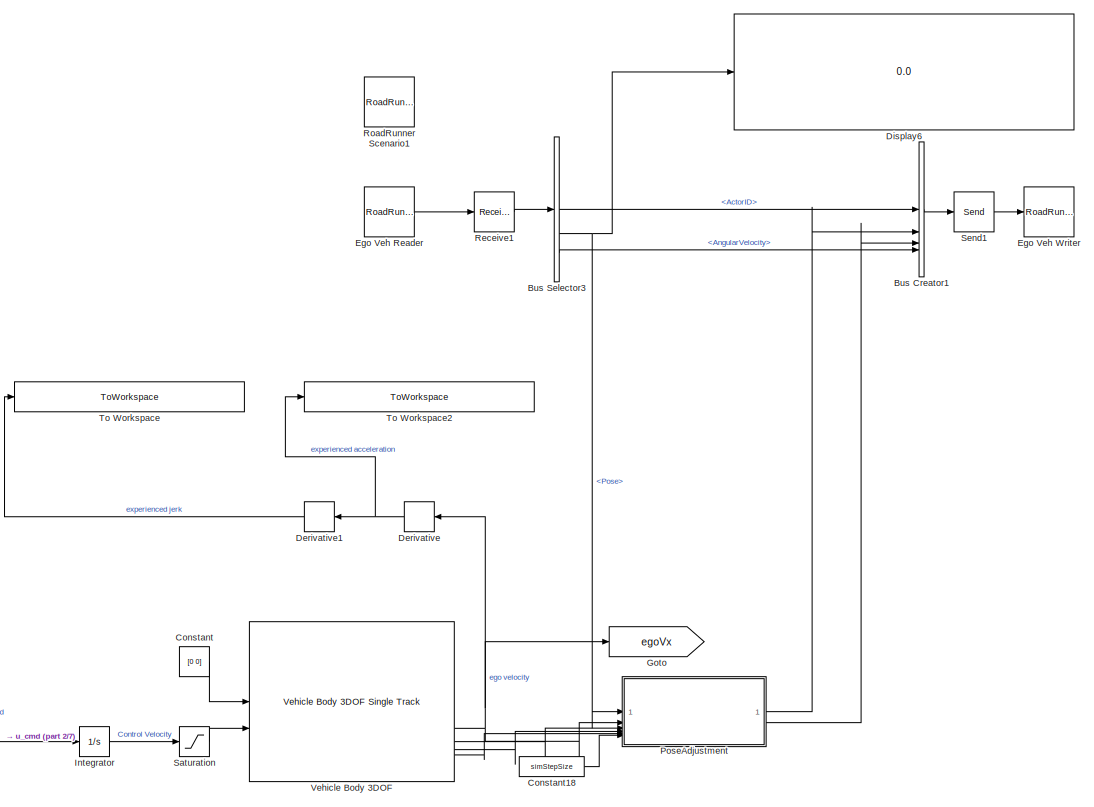
[diagram: root canvas - part 1/7, top right region]
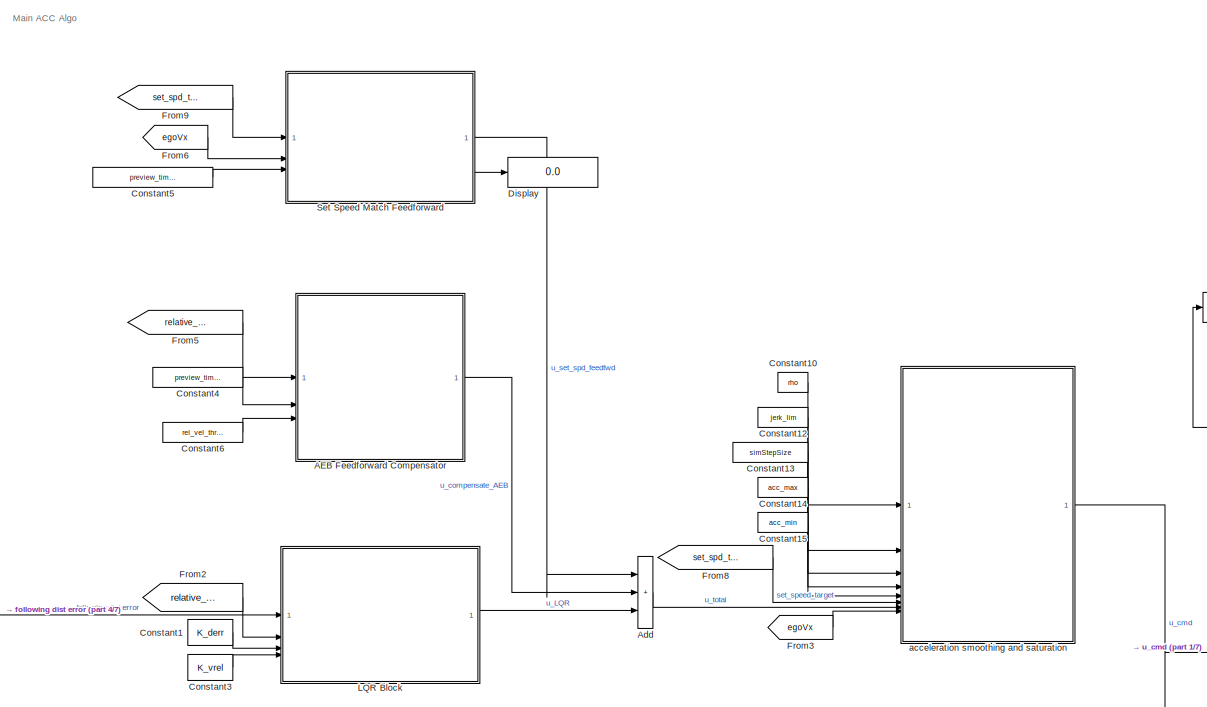
[diagram: root canvas - part 2/7, top center region]
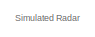
[diagram: root canvas - part 3/7, top left region]
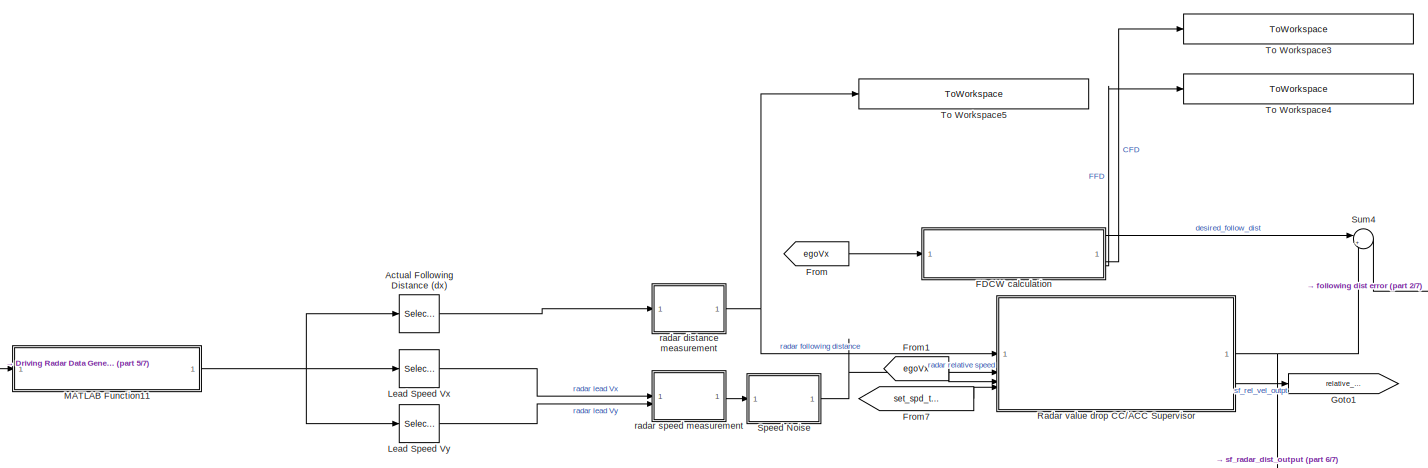
[diagram: root canvas - part 4/7, middle left region]
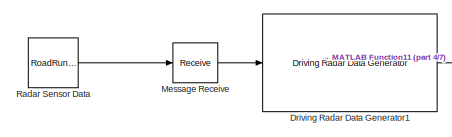
[diagram: root canvas - part 5/7, middle left region]
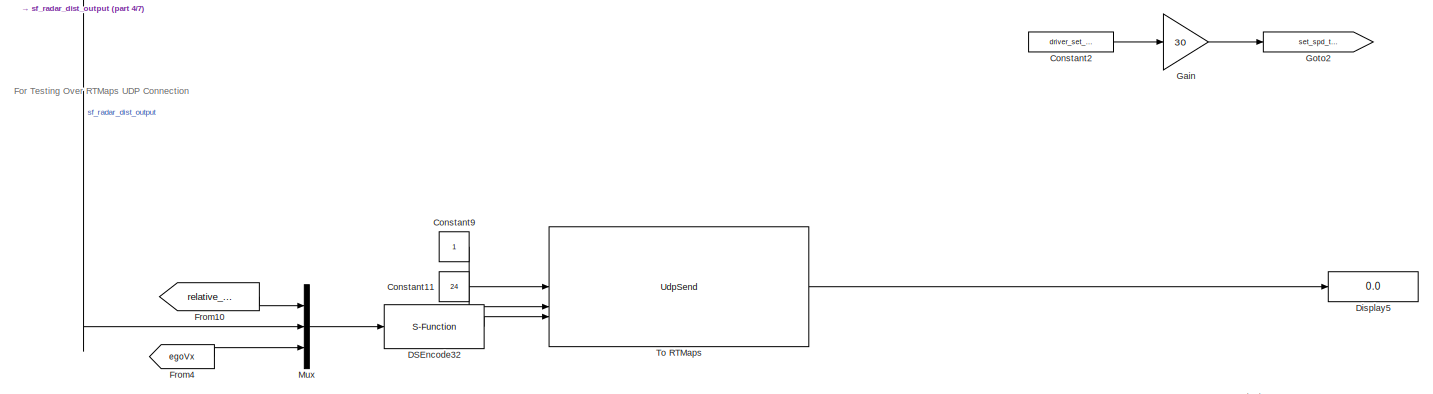
[diagram: root canvas - part 6/7, bottom center region]
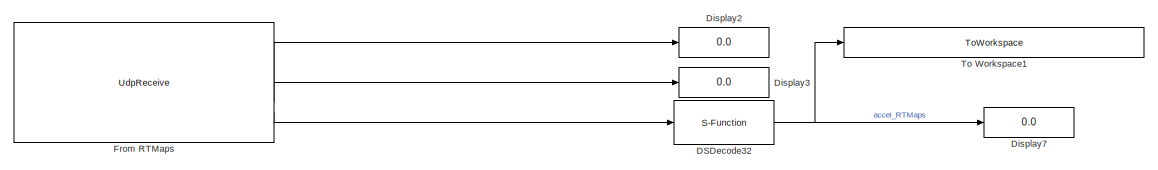
[diagram: root canvas - part 7/7, bottom center region]
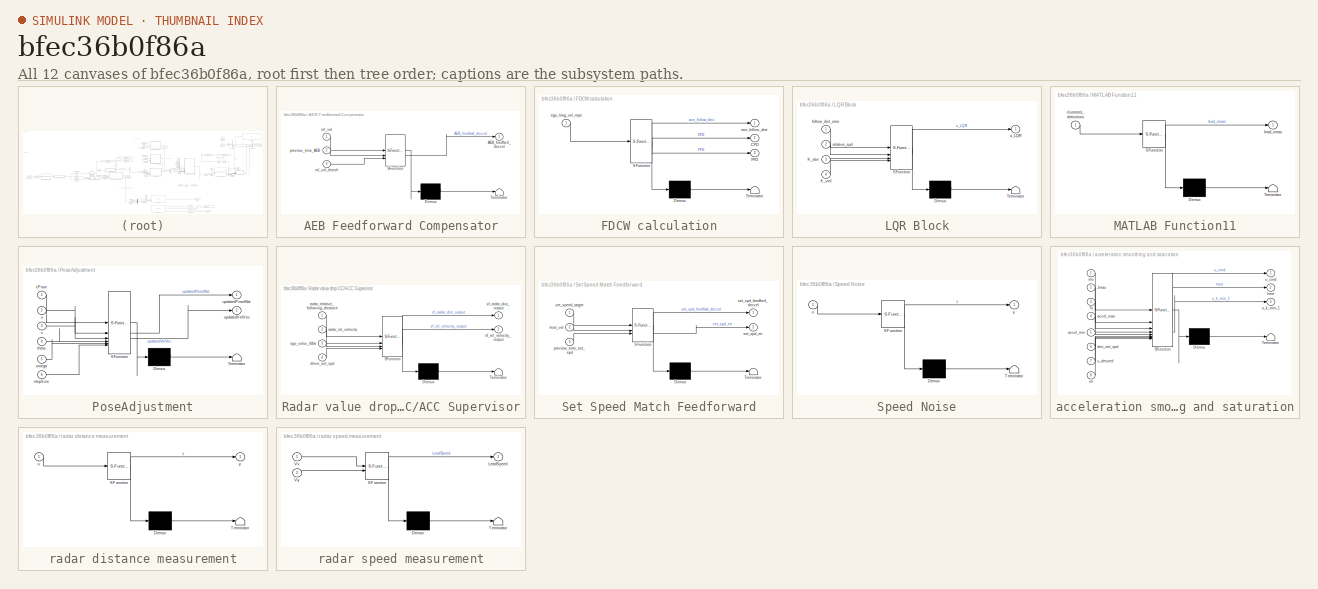
[diagram: thumbnail index - all 12 canvases of the model, root first then tree order]
MODEL slx_bfec36b0f86a
KIND model
CONFIG AbsTol = auto
CONFIG EnableMultiTasking = off
CONFIG FixedStep = 0.05
CONFIG MaxStep = auto
CONFIG MinStep = auto
CONFIG RelTol = 1e-3
CONFIG SampleTimeConstraint = Unconstrained
CONFIG SolverName = FixedStepAuto
CONFIG StartTime = 0
CONFIG StopTime = 1000
BLOCK [SubSystem] AEB Feedforward Compensator
  ErrorFcn = Stateflow.Translate.translate
  PermitHierarchicalResolution = ExplicitOnly
  SFBlockType = MATLAB Function
  TreatAsAtomicUnit = on
BLOCK [Demux] AEB Feedforward Compensator/ Demux 
  Outputs = 1
BLOCK [S-Function] AEB Feedforward Compensator/ SFunction 
  EnableBusSupport = on
  FunctionName = sf_sfun
  PortCounts = [3 2]
  SFcnIsStateOwnerBlock = off
  SFunctionDeploymentMode = off
  Tag = Stateflow S-Function 2
BLOCK [Terminator] AEB Feedforward Compensator/ Terminator 
BLOCK [Outport] AEB Feedforward Compensator/AEB_feedfwd_deccel
BLOCK [Inport] AEB Feedforward Compensator/preview_time_AEB
  Port = 2
BLOCK [Inport] AEB Feedforward Compensator/rel_vel
BLOCK [Inport] AEB Feedforward Compensator/rel_vel_thresh
  Port = 3
BLOCK [Selector] Actual Following Distance (dx)
  IndexOptions = Index vector (dialog)
  Indices = [1]
  InputPortWidth = 6
  OutputSizes = 1
BLOCK [Sum] Add
  IconShape = rectangular
  Inputs = +++
BLOCK [BusCreator] Bus Creator1
  DisplayOption = bar
  InheritFromInputs = off
  Inputs = 4
  NonVirtualBus = on
  OutDataTypeStr = Bus: BusActorRuntime
BLOCK [BusSelector] Bus Selector3
  OutputSignals = ActorID,Pose,Velocity,AngularVelocity
BLOCK [Constant] Constant
  Value = [0 0]
BLOCK [Constant] Constant1
  SampleTime = simStepSize
  Value = K_derr
BLOCK [Constant] Constant10
  Value = rho
BLOCK [Constant] Constant11
  Value = 24
BLOCK [Constant] Constant12
  Value = jerk_lim
BLOCK [Constant] Constant13
  Value = simStepSize
BLOCK [Constant] Constant14
  Value = acc_max
BLOCK [Constant] Constant15
  Value = acc_min
BLOCK [Constant] Constant18
  Value = simStepSize
BLOCK [Constant] Constant2
  SampleTime = simStepSize
  Value = driver_set_speed
BLOCK [Constant] Constant3
  SampleTime = simStepSize
  Value = K_vrel
BLOCK [Constant] Constant4
  Value = preview_time_AEB
BLOCK [Constant] Constant5
  Value = preview_time_set_spd
BLOCK [Constant] Constant6
  Value = rel_vel_thresh
BLOCK [Constant] Constant9
BLOCK [S-Function] DSDecode32 
  EnableBusSupport = off
  FunctionName = ds867c_eth_decode32_sfcn
  Parameters = byteordering,offset,auto_offset,datatype,one_datatype,sampletime
  SFcnIsStateOwnerBlock = off
  SFunctionDeploymentMode = off
BLOCK [S-Function] DSEncode32
  EnableBusSupport = off
  FunctionName = ds867c_eth_encode32_sfcn
  Parameters = byteordering,offset,auto_offset,datatype,one_datatype,sampletime
  SFcnIsStateOwnerBlock = off
  SFunctionDeploymentMode = off
BLOCK [Derivative] Derivative
BLOCK [Derivative] Derivative1
BLOCK [Display] Display
  Decimation = 1
BLOCK [Display] Display2
  Decimation = 1
BLOCK [Display] Display3
  Decimation = 1
BLOCK [Display] Display5
  Decimation = 1
BLOCK [Display] Display6
  Decimation = 1
BLOCK [Display] Display7
  Decimation = 1
BLOCK [Reference] Driving Radar Data Generator1  REF=drivingscenarioandsensors/Driving Radar Data Generator
  SourceBlock = drivingscenarioandsensors/Driving Radar Data Generator
  SourceType = drivingRadarDataGenerator
BLOCK [Reference] Ego Veh Reader  REF=roadrunnerscenario/RoadRunner Scenario
Reader
  SourceBlock = roadrunnerscenario/RoadRunner Scenario\nReader
BLOCK [Reference] Ego Veh Writer  REF=roadrunnerscenario/RoadRunner Scenario
Writer
  SourceBlock = roadrunnerscenario/RoadRunner Scenario\nWriter
BLOCK [SubSystem] FDCW calculation
  ErrorFcn = Stateflow.Translate.translate
  PermitHierarchicalResolution = ExplicitOnly
  SFBlockType = MATLAB Function
  TreatAsAtomicUnit = on
BLOCK [Demux] FDCW calculation/ Demux 
  Outputs = 1
BLOCK [S-Function] FDCW calculation/ SFunction 
  EnableBusSupport = on
  FunctionName = sf_sfun
  PortCounts = [1 4]
  SFcnIsStateOwnerBlock = off
  SFunctionDeploymentMode = off
  Tag = Stateflow S-Function 23
BLOCK [Terminator] FDCW calculation/ Terminator 
BLOCK [Outport] FDCW calculation/CFD
  Port = 2
BLOCK [Outport] FDCW calculation/FFD
  Port = 3
BLOCK [Outport] FDCW calculation/ave_follow_dist
BLOCK [Inport] FDCW calculation/ego_long_vel_mps
BLOCK [From] From
  GotoTag = egoVx
BLOCK [Reference] From RTMaps  REF=dsa_UDP_Blockset/UdpReceive
  SourceBlock = dsa_UDP_Blockset/UdpReceive
  SourceType = DSA_UDP_RECEIVE
BLOCK [From] From1
  GotoTag = egoVx
BLOCK [From] From10
  GotoTag = relative_velocity
BLOCK [From] From2
  GotoTag = relative_velocity
BLOCK [From] From3
  GotoTag = egoVx
BLOCK [From] From4
  GotoTag = egoVx
BLOCK [From] From5
  GotoTag = relative_velocity
BLOCK [From] From6
  GotoTag = egoVx
BLOCK [From] From7
  GotoTag = set_spd_target
BLOCK [From] From8
  GotoTag = set_spd_target
BLOCK [From] From9
  GotoTag = set_spd_target
BLOCK [Gain] Gain
  Gain = 30
BLOCK [Goto] Goto
  GotoTag = egoVx
BLOCK [Goto] Goto1
  GotoTag = relative_velocity
BLOCK [Goto] Goto2
  GotoTag = set_spd_target
BLOCK [Integrator] Integrator
BLOCK [SubSystem] LQR Block
  ErrorFcn = Stateflow.Translate.translate
  PermitHierarchicalResolution = ExplicitOnly
  SFBlockType = MATLAB Function
  SystemSampleTime = simStepSize
  TreatAsAtomicUnit = on
BLOCK [Demux] LQR Block/ Demux 
  Outputs = 1
BLOCK [S-Function] LQR Block/ SFunction 
  EnableBusSupport = on
  FunctionName = sf_sfun
  PortCounts = [4 2]
  SFcnIsStateOwnerBlock = off
  SFunctionDeploymentMode = off
  Tag = Stateflow S-Function 1
BLOCK [Terminator] LQR Block/ Terminator 
BLOCK [Inport] LQR Block/K_derr
  Port = 3
BLOCK [Inport] LQR Block/K_vrel
  Port = 4
BLOCK [Inport] LQR Block/follow_dist_error
BLOCK [Inport] LQR Block/relative_spd
  Port = 2
BLOCK [Outport] LQR Block/u_LQR
BLOCK [Selector] Lead Speed Vx
  IndexOptions = Index vector (dialog)
  Indices = 4
  InputPortWidth = 6
  OutputSizes = 1
BLOCK [Selector] Lead Speed Vy
  IndexOptions = Index vector (dialog)
  Indices = 5
  InputPortWidth = 6
  NameLocation = top
  OutputSizes = 1
BLOCK [SubSystem] MATLAB Function11
  ErrorFcn = Stateflow.Translate.translate
  PermitHierarchicalResolution = ExplicitOnly
  SFBlockType = MATLAB Function
  TreatAsAtomicUnit = on
BLOCK [Demux] MATLAB Function11/ Demux 
  Outputs = 1
BLOCK [S-Function] MATLAB Function11/ SFunction 
  EnableBusSupport = on
  FunctionName = sf_sfun
  PortCounts = [1 2]
  SFcnIsStateOwnerBlock = off
  SFunctionDeploymentMode = off
  Tag = Stateflow S-Function 22
BLOCK [Terminator] MATLAB Function11/ Terminator 
BLOCK [Inport] MATLAB Function11/clustered_detections
BLOCK [Outport] MATLAB Function11/lead_meas
BLOCK [Receive] Message Receive
  InputPortMap = u0
  InputPortMessageModes = m
  OutputPortMap = o1
  UseInternalQueue = off
BLOCK [Mux] Mux
  DisplayOption = bar
  Inputs = 3
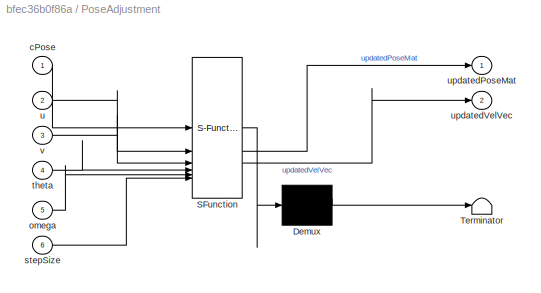
BLOCK [SubSystem] PoseAdjustment
  ErrorFcn = Stateflow.Translate.translate
  PermitHierarchicalResolution = ExplicitOnly
  SFBlockType = MATLAB Function
  TreatAsAtomicUnit = on
BLOCK [Demux] PoseAdjustment/ Demux 
  Outputs = 1
BLOCK [S-Function] PoseAdjustment/ SFunction 
  EnableBusSupport = on
  FunctionName = sf_sfun
  PortCounts = [6 3]
  SFcnIsStateOwnerBlock = off
  SFunctionDeploymentMode = off
  Tag = Stateflow S-Function 12
BLOCK [Terminator] PoseAdjustment/ Terminator 
BLOCK [Inport] PoseAdjustment/cPose
BLOCK [Inport] PoseAdjustment/omega
  Port = 5
BLOCK [Inport] PoseAdjustment/stepSize
  Port = 6
BLOCK [Inport] PoseAdjustment/theta
  Port = 4
BLOCK [Inport] PoseAdjustment/u
  Port = 2
BLOCK [Outport] PoseAdjustment/updatedPoseMat
BLOCK [Outport] PoseAdjustment/updatedVelVec
  Port = 2
BLOCK [Inport] PoseAdjustment/v
  Port = 3
BLOCK [Reference] Radar Sensor Data  REF=roadrunnerscenario/RoadRunner Scenario
Reader
  SourceBlock = roadrunnerscenario/RoadRunner Scenario\nReader
BLOCK [SubSystem] Radar value drop CC//ACC Supervisor
  ErrorFcn = Stateflow.Translate.translate
  PermitHierarchicalResolution = ExplicitOnly
  SFBlockType = Chart
  TreatAsAtomicUnit = on
BLOCK [Demux] Radar value drop CC//ACC Supervisor/ Demux 
  Outputs = 1
BLOCK [S-Function] Radar value drop CC//ACC Supervisor/ SFunction 
  EnableBusSupport = on
  FunctionName = sf_sfun
  PortCounts = [4 3]
  SFcnIsStateOwnerBlock = off
  SFunctionDeploymentMode = off
  Tag = Stateflow S-Function 3
BLOCK [Terminator] Radar value drop CC//ACC Supervisor/ Terminator 
BLOCK [Inport] Radar value drop CC//ACC Supervisor/driver_set_spd
  Port = 4
BLOCK [Inport] Radar value drop CC//ACC Supervisor/ego_veloc_fdbk
  Port = 3
BLOCK [Inport] Radar value drop CC//ACC Supervisor/radar_rel_velocity
  Port = 2
BLOCK [Inport] Radar value drop CC//ACC Supervisor/radar_relative_following_distance
BLOCK [Outport] Radar value drop CC//ACC Supervisor/sf_radar_dist_output
BLOCK [Outport] Radar value drop CC//ACC Supervisor/sf_rel_velocity_output
  Port = 2
BLOCK [Receive] Receive1
  InputPortMap = u0
  InputPortMessageModes = m
  OutputPortMap = o1
  QueueLength = 1
  QueueOverwriting = on
  QueueType = LIFO
  UseInternalQueue = off
BLOCK [Reference] RoadRunner Scenario1  REF=roadrunnerscenario/RoadRunner Scenario
  SourceBlock = roadrunnerscenario/RoadRunner Scenario
BLOCK [Saturate] Saturation
  Commented = through
  LowerLimit = 0
  UpperLimit = driver_set_speed
BLOCK [Send] Send1
  InputPortMap = u1
  OutputPortMessageModes = m
BLOCK [SubSystem] Set Speed Match Feedforward
  ErrorFcn = Stateflow.Translate.translate
  PermitHierarchicalResolution = ExplicitOnly
  SFBlockType = MATLAB Function
  TreatAsAtomicUnit = on
BLOCK [Demux] Set Speed Match Feedforward/ Demux 
  Outputs = 1
BLOCK [S-Function] Set Speed Match Feedforward/ SFunction 
  EnableBusSupport = on
  FunctionName = sf_sfun
  PortCounts = [3 3]
  SFcnIsStateOwnerBlock = off
  SFunctionDeploymentMode = off
  Tag = Stateflow S-Function 5
BLOCK [Terminator] Set Speed Match Feedforward/ Terminator 
BLOCK [Inport] Set Speed Match Feedforward/host_vel
  Port = 2
BLOCK [Inport] Set Speed Match Feedforward/preview_time_set_spd
  Port = 3
BLOCK [Outport] Set Speed Match Feedforward/set_spd_err
  Port = 2
BLOCK [Outport] Set Speed Match Feedforward/set_spd_feedfwd_deccel
BLOCK [Inport] Set Speed Match Feedforward/set_speed_target
BLOCK [SubSystem] Speed Noise
  ErrorFcn = Stateflow.Translate.translate
  PermitHierarchicalResolution = ExplicitOnly
  SFBlockType = MATLAB Function
  TreatAsAtomicUnit = on
BLOCK [Demux] Speed Noise/ Demux 
  Outputs = 1
BLOCK [S-Function] Speed Noise/ SFunction 
  EnableBusSupport = on
  FunctionName = sf_sfun
  PortCounts = [1 2]
  SFcnIsStateOwnerBlock = off
  SFunctionDeploymentMode = off
  Tag = Stateflow S-Function 15
BLOCK [Terminator] Speed Noise/ Terminator 
BLOCK [Inport] Speed Noise/u
BLOCK [Outport] Speed Noise/y
BLOCK [Sum] Sum4
  Inputs = |+-
BLOCK [Reference] To RTMaps  REF=dsa_UDP_Blockset/UdpSend
  SourceBlock = dsa_UDP_Blockset/UdpSend
  SourceType = DSA_UDP_SEND
BLOCK [ToWorkspace] To Workspace
  FixptAsFi = on
  MaxDataPoints = inf
  SampleTime = -1
  VariableName = LQR_host_jerk
BLOCK [ToWorkspace] To Workspace1
  FixptAsFi = on
  MaxDataPoints = inf
  SampleTime = -1
  SaveFormat = Timeseries
  VariableName = RTMapsLQR_inpt_from_SL1
BLOCK [ToWorkspace] To Workspace2
  FixptAsFi = on
  MaxDataPoints = inf
  SampleTime = -1
  VariableName = LQR_host_accel
BLOCK [ToWorkspace] To Workspace3
  FixptAsFi = on
  MaxDataPoints = inf
  SampleTime = -1
  VariableName = LQR_CFD
BLOCK [ToWorkspace] To Workspace4
  FixptAsFi = on
  MaxDataPoints = inf
  SampleTime = -1
  VariableName = LQR_FFD
BLOCK [ToWorkspace] To Workspace5
  FixptAsFi = on
  MaxDataPoints = inf
  SampleTime = -1
  VariableName = LQR_actual_foll_dist
BLOCK [Reference] Vehicle Body 3DOF   REF=autolibshared/Vehicle Body 3DOF Single Track
  LibrarySourceBlock = vehdynlibeom/Vehicle Body 3DOF Single Track
  SourceBlock = autolibshared/Vehicle Body 3DOF Single Track
  SourceType = Vehicle Body 3DOF Lateral
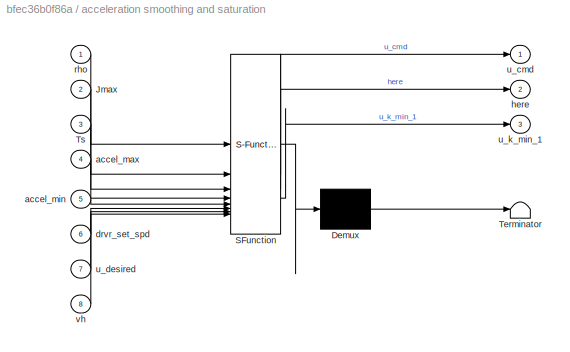
BLOCK [SubSystem] acceleration smoothing and saturation
  ErrorFcn = Stateflow.Translate.translate
  PermitHierarchicalResolution = ExplicitOnly
  SFBlockType = MATLAB Function
  SystemSampleTime = simStepSize
  TreatAsAtomicUnit = on
BLOCK [Demux] acceleration smoothing and saturation/ Demux 
  Outputs = 1
BLOCK [S-Function] acceleration smoothing and saturation/ SFunction 
  EnableBusSupport = on
  FunctionName = sf_sfun
  PortCounts = [8 4]
  SFcnIsStateOwnerBlock = off
  SFunctionDeploymentMode = off
  Tag = Stateflow S-Function 4
BLOCK [Terminator] acceleration smoothing and saturation/ Terminator 
BLOCK [Inport] acceleration smoothing and saturation/Jmax
  Port = 2
BLOCK [Inport] acceleration smoothing and saturation/Ts
  Port = 3
BLOCK [Inport] acceleration smoothing and saturation/accel_max
  Port = 4
BLOCK [Inport] acceleration smoothing and saturation/accel_min
  Port = 5
BLOCK [Inport] acceleration smoothing and saturation/drvr_set_spd
  Port = 6
BLOCK [Outport] acceleration smoothing and saturation/here
  Port = 2
BLOCK [Inport] acceleration smoothing and saturation/rho
BLOCK [Outport] acceleration smoothing and saturation/u_cmd
BLOCK [Inport] acceleration smoothing and saturation/u_desired
  Port = 7
BLOCK [Outport] acceleration smoothing and saturation/u_k_min_1
  Port = 3
BLOCK [Inport] acceleration smoothing and saturation/vh
  Port = 8
BLOCK [SubSystem] radar distance measurement
  ErrorFcn = Stateflow.Translate.translate
  PermitHierarchicalResolution = ExplicitOnly
  SFBlockType = MATLAB Function
  TreatAsAtomicUnit = on
BLOCK [Demux] radar distance measurement/ Demux 
  Outputs = 1
BLOCK [S-Function] radar distance measurement/ SFunction 
  EnableBusSupport = on
  FunctionName = sf_sfun
  PortCounts = [1 2]
  SFcnIsStateOwnerBlock = off
  SFunctionDeploymentMode = off
  Tag = Stateflow S-Function 13
BLOCK [Terminator] radar distance measurement/ Terminator 
BLOCK [Inport] radar distance measurement/u
BLOCK [Outport] radar distance measurement/y
BLOCK [SubSystem] radar speed measurement
  ErrorFcn = Stateflow.Translate.translate
  PermitHierarchicalResolution = ExplicitOnly
  SFBlockType = MATLAB Function
  TreatAsAtomicUnit = on
BLOCK [Demux] radar speed measurement/ Demux 
  Outputs = 1
BLOCK [S-Function] radar speed measurement/ SFunction 
  EnableBusSupport = on
  FunctionName = sf_sfun
  PortCounts = [2 2]
  SFcnIsStateOwnerBlock = off
  SFunctionDeploymentMode = off
  Tag = Stateflow S-Function 14
BLOCK [Terminator] radar speed measurement/ Terminator 
BLOCK [Outport] radar speed measurement/LeadSpeed
BLOCK [Inport] radar speed measurement/Vx
BLOCK [Inport] radar speed measurement/Vy
  Port = 2
ANNOTATION (root): For Testing Over RTMaps UDP Connection
ANNOTATION (root): Main ACC Algo
ANNOTATION (root): Simulated Radar
LINE AEB Feedforward Compensator:1 -> Add:2
LINE Actual Following Distance (dx):1 -> radar distance measurement:1
LINE Add:1 -> acceleration smoothing and saturation:7
LINE Bus Creator1:1 -> Send1:1
LINE Bus Selector3:1 -> Bus Creator1:1
NET Bus Selector3:2 -> Display6:1, PoseAdjustment:1
LINE Bus Selector3:4 -> Bus Creator1:4
LINE Constant10:1 -> acceleration smoothing and saturation:1
LINE Constant11:1 -> To RTMaps:2
LINE Constant12:1 -> acceleration smoothing and saturation:2
LINE Constant13:1 -> acceleration smoothing and saturation:3
LINE Constant14:1 -> acceleration smoothing and saturation:4
LINE Constant15:1 -> acceleration smoothing and saturation:5
LINE Constant18:1 -> PoseAdjustment:6
LINE Constant1:1 -> LQR Block:3
LINE Constant2:1 -> Gain:1
LINE Constant3:1 -> LQR Block:4
LINE Constant4:1 -> AEB Feedforward Compensator:2
LINE Constant5:1 -> Set Speed Match Feedforward:3
LINE Constant6:1 -> AEB Feedforward Compensator:3
LINE Constant9:1 -> To RTMaps:1
LINE Constant:1 -> Vehicle Body 3DOF :1
NET DSDecode32 :1 -> Display7:1, To Workspace1:1
LINE DSEncode32:1 -> To RTMaps:3
LINE Derivative1:1 -> To Workspace:1
NET Derivative:1 -> Derivative1:1, To Workspace2:1
LINE Driving Radar Data Generator1:1 -> MATLAB Function11:1
LINE Ego Veh Reader:1 -> Receive1:1
LINE FDCW calculation:1 -> Sum4:1
LINE FDCW calculation:2 -> To Workspace3:1
LINE FDCW calculation:3 -> To Workspace4:1
LINE From RTMaps:1 -> Display2:1
LINE From RTMaps:2 -> Display3:1
LINE From RTMaps:3 -> DSDecode32 :1
LINE From10:1 -> Mux:1
LINE From1:1 -> Radar value drop CC//ACC Supervisor:3
LINE From2:1 -> LQR Block:2
LINE From3:1 -> acceleration smoothing and saturation:8
LINE From4:1 -> Mux:3
LINE From5:1 -> AEB Feedforward Compensator:1
LINE From6:1 -> Set Speed Match Feedforward:2
LINE From7:1 -> Radar value drop CC//ACC Supervisor:4
LINE From8:1 -> acceleration smoothing and saturation:6
LINE From9:1 -> Set Speed Match Feedforward:1
LINE From:1 -> FDCW calculation:1
LINE Gain:1 -> Goto2:1
LINE Integrator:1 -> Saturation:1
LINE LQR Block:1 -> Add:3
LINE Lead Speed Vx:1 -> radar speed measurement:1
LINE Lead Speed Vy:1 -> radar speed measurement:2
NET MATLAB Function11:1 -> Actual Following Distance (dx):1, Lead Speed Vx:1, Lead Speed Vy:1
LINE Message Receive:1 -> Driving Radar Data Generator1:1
LINE Mux:1 -> DSEncode32:1
LINE PoseAdjustment:1 -> Bus Creator1:2
LINE PoseAdjustment:2 -> Bus Creator1:3
LINE Radar Sensor Data:1 -> Message Receive:1
NET Radar value drop CC//ACC Supervisor:1 -> Mux:2, Sum4:2
LINE Radar value drop CC//ACC Supervisor:2 -> Goto1:1
LINE Receive1:1 -> Bus Selector3:1
LINE Saturation:1 -> Vehicle Body 3DOF :2
LINE Send1:1 -> Ego Veh Writer:1
LINE Set Speed Match Feedforward:1 -> Add:1
LINE Set Speed Match Feedforward:2 -> Display:1
LINE Speed Noise:1 -> Radar value drop CC//ACC Supervisor:2
LINE Sum4:1 -> LQR Block:1
LINE To RTMaps:1 -> Display5:1
NET Vehicle Body 3DOF :2 -> Derivative:1, Goto:1, PoseAdjustment:2
LINE Vehicle Body 3DOF :3 -> PoseAdjustment:3
LINE Vehicle Body 3DOF :4 -> PoseAdjustment:4
LINE Vehicle Body 3DOF :5 -> PoseAdjustment:5
LINE acceleration smoothing and saturation:1 -> Integrator:1
NET radar distance measurement:1 -> Radar value drop CC//ACC Supervisor:1, To Workspace5:1
LINE radar speed measurement:1 -> Speed Noise:1
note: NET lines group one-source signal fan-out (src -> all destinations, sorted); 1:1 wires keep LINE
CHART radar distance measurement states=1 transitions=1
  STATE_LABEL 'eML_blk_kernel()'
  STATE_LABEL 'SCRIPT:\nfunction y = removeSpikes(u)\n\n    persistent buffer;\n    persistent bufferIndex;\n    threshold = 2;\n    windowSize = 15;\n    % windowSize = 4;\n    \n    if isempty(buffer)\n        buffer = zeros(1, windowSize);\n        bufferIndex = 1;\n    end\n    \n    % Update buffer with new value\n    buffer(bufferIndex) = u;\n    bufferIndex = mod(bufferIndex, windowSize) + 1;\n    \n    % Calculate the med...<+257ch>'
CHART radar speed measurement states=1 transitions=1
  STATE_LABEL 'eML_blk_kernel()'
  STATE_LABEL 'SCRIPT:\nfunction LeadSpeed = fcn(Vx, Vy)\n\nif Vx == 0 && Vy == 0 \n    Vx = 0.01;\n    Vy = 0.01;\nelseif Vy == 0\n    Vy = 0.01;\nelseif Vx == 0\n    Vx = 0.01;\nend\n\nif Vx <= 0\n    LeadSpeed = -sqrt(Vx^2 + Vy^2);\nelse\n    LeadSpeed = sqrt(Vx^2 + Vy^2);\nend\n\n'
CHART Speed Noise states=1 transitions=1
  STATE_LABEL 'eML_blk_kernel()'
  STATE_LABEL 'SCRIPT:\nfunction y = removeSpikes(u)\n    % removeSpikes - Removes spikes from a scalar signal based on a threshold\n    %\n    % Inputs:\n    %    u - The input signal (scalar)\n    %    threshold - The threshold value to detect spikes\n    %    windowSize - The size of the window for calculating the median\n    %\n    % Outputs:\n    %    y - The filtered signal with spikes removed\n\n    % Declare persist...<+655ch>'
CHART MATLAB Function11 states=1 transitions=1
  STATE_LABEL 'eML_blk_kernel()'
  STATE_LABEL 'SCRIPT:\nfunction lead_meas = fcn(clustered_detections)\n\nlead_det = clustered_detections.Detections(1);\nlead_meas = lead_det.Measurement;\n\n% relative_dist = sqrt(lead_det.Measurement(1)^2 + lead_det.Measurement(2)^2); % rel_dist = sqrt(x^2+y^2)\n% relative_speed = sqrt(lead_det.Measurement(4)^2 + lead_det.Measurement(5)^2);\nend'
CHART FDCW calculation states=1 transitions=1
  STATE_LABEL 'eML_blk_kernel()'
  STATE_LABEL "SCRIPT:\n% Function to determine the closest (CFD) and furthest follow distance (FFD) for the\n% ego vehicle relative to the lead vehicle given the ego vehicle's current\n% velocity\n\n% This function outputs the middle distance value between the CFD and FFD\n% and those values respectively as well\n\nfunction [ave_follow_dist, CFD, FFD] = fcn(ego_long_vel_mps)\n    persistent dist_history window_size smoo...<+1228ch>"
CHART LQR Block states=1 transitions=1
  STATE_LABEL 'eML_blk_kernel()'
  STATE_LABEL 'SCRIPT:\n function u_LQR = fcn(follow_dist_error, relative_spd, K_derr, K_vrel)\nu_LQR = -K_derr*follow_dist_error-K_vrel*relative_spd;\n'
CHART AEB Feedforward Compensator states=1 transitions=1
  STATE_LABEL 'eML_blk_kernel()'
  STATE_LABEL 'SCRIPT:\nfunction AEB_feedfwd_deccel = fcn(rel_vel, preview_time_AEB, rel_vel_thresh)\n% This function determines a feedforward decceleration to apply to vehicle\n% in the event that the vehicle approaches a stopped car at high speed,\n% i.e. Automatic Emergency Braking (AEB) event\n% rel_vel is the relative velocity compared to lead vehicle [m/s]; \n% preview_time is the time in [secs] over which the c...<+305ch>'
CHART Radar value drop CC//ACC Supervisor states=3 transitions=3
  STATE_LABEL 'Radar_State_Lead_Veh_Present_and_Detected\n\nsf_radar_dist_output = radar_relative_following_distance;\nsf_rel_velocity_output = radar_rel_velocity;\ncounter = counter + 1; % updates by 1 every time step; to wait to give the radar time to initialize in simulation\n'
  STATE_LABEL 'filtered_val = smooth_switch(prev_val, curr_val, dt, tau)'
  STATE_LABEL 'SCRIPT:\nfunction filtered_val = smooth_switch(prev_val, curr_val, dt, tau)\n% Smooth transition from prev_val toward curr_val\n% dt  = sample time [s]; equal to system sample time of 0.05s currently\n% tau = time constant [s] (0.3–1.0 typical)\n\nif isempty(prev_val)\n    prev_val = 0;\nend\n\nalpha = exp(-dt/tau);\nfiltered_val = alpha*prev_val + (1-alpha)*curr_val;\nend'
  STATE_LABEL 'Output_Spoof_To_Keep_Moving\n\n%sf_radar_dist_output = 150;\nsf_radar_dist_output = smooth_switch(sf_radar_dist_output, 70, 0.05, 2);\nset_spd_err = driver_set_spd - ego_veloc_fdbk;\nsf_rel_velocity_output = set_spd_err;\n% sf_rel_velocity_output = smooth_switch(sf_rel_velocity_output, set_spd_err, 0.05, 5);'
CHART acceleration smoothing and saturation states=1 transitions=1
  STATE_LABEL 'eML_blk_kernel()'
  STATE_LABEL 'SCRIPT:\nfunction [u_cmd, here, u_k_min_1] = fcn(rho, Jmax, Ts, accel_max, accel_min, drvr_set_spd, u_desired, vh)\n% function u_cmd = fcn(rho, Jmax, Ts, accel_max, accel_min, drvr_set_spd, u_desired, vh)\n% This function is the smoothing step that determines a commanded control\n% signal based on minimizing the following QP : J(u) = (u-u_lqr)^2 + rho*(u - uk_minus_1)^2\n% This block also limits the ac...<+1789ch>'
CHART Set Speed Match Feedforward states=1 transitions=1
  STATE_LABEL 'eML_blk_kernel()'
  STATE_LABEL 'SCRIPT:\nfunction [set_spd_feedfwd_deccel, set_spd_err] = fcn(set_speed_target, host_vel, preview_time_set_spd)\n% This function determines the feedforward slowing down effect for host if\n% the vehicle ever exceeds the set speed maximum/driver set speed/speed target set by AIN feature\n% inputs are set_speed_target [m/s] which is speed maximum value; host_vel which is host velocity feedback [m/s]; \n%...<+326ch>'
CHART PoseAdjustment states=1 transitions=1
  STATE_LABEL 'eML_blk_kernel()'
  STATE_LABEL 'SCRIPT:\nfunction [updatedPoseMat, updatedVelVec] = fcn(cPose, u, v, theta, omega, stepSize)\n    thetad = theta + omega*stepSize;\n    xd = (u*cos(theta) - v*sin(theta))*stepSize;\n    yd = (u*sin(theta) + v*cos(theta))*stepSize;\n    pose_mat = [cos(-thetad) -sin(-thetad) 0 (yd+cPose(1,4)); sin(-thetad) cos(-thetad) 0 (xd+cPose(2,4)); 0 0 1 0; 0 0 0 1];\n    updatedPoseMat = pose_mat;\n    updatedVelVe...<+83ch>'
CHART  states=0 transitions=0
CHART  states=0 transitions=0
CHART  states=0 transitions=0
CHART  states=0 transitions=0
CHART  states=0 transitions=0
CHART  states=0 transitions=0
CHART  states=0 transitions=0
CHART  states=0 transitions=0
CHART  states=0 transitions=0
CHART  states=0 transitions=0
CHART  states=0 transitions=0
